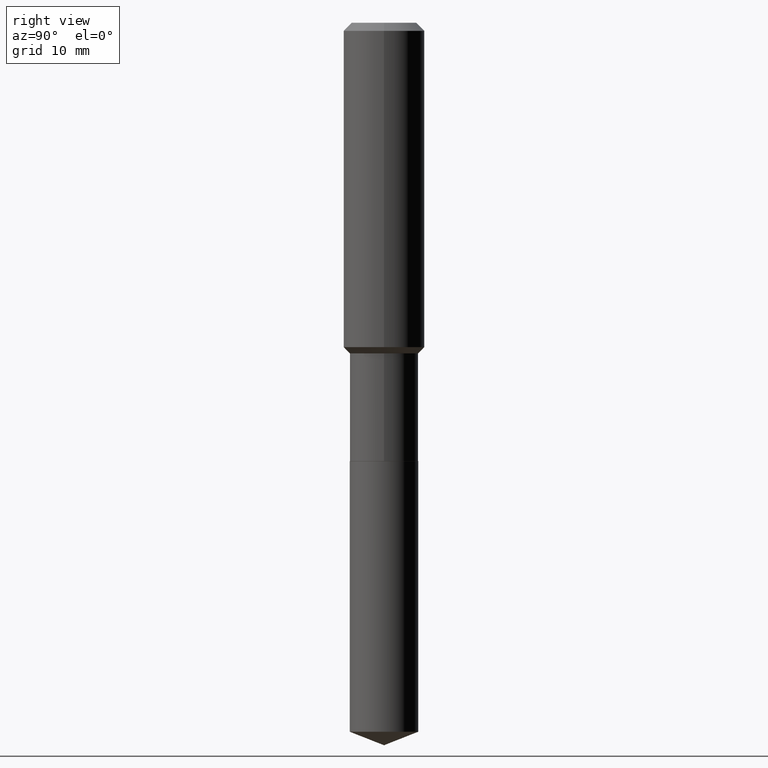
[diagram: clean part render]
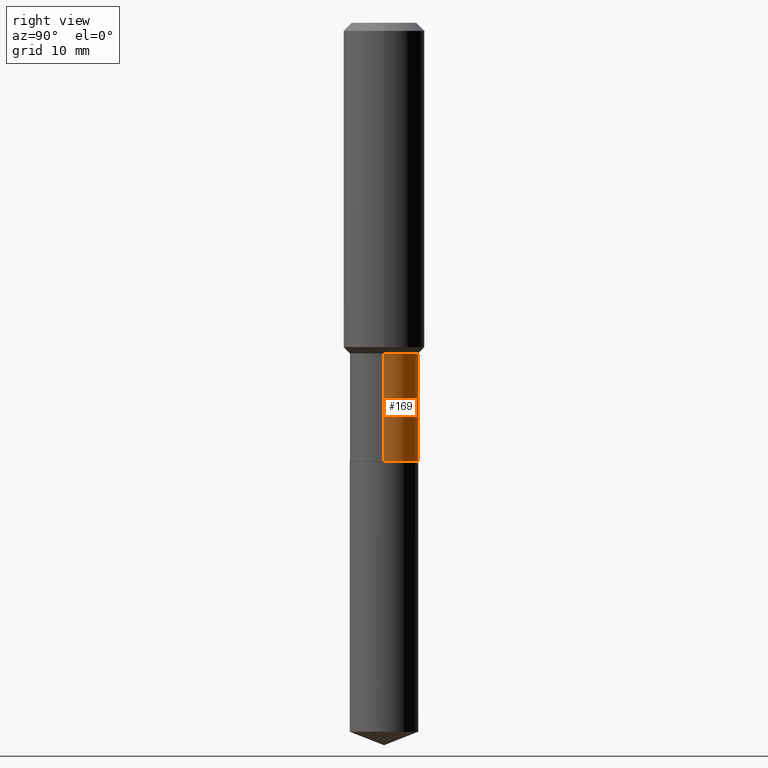
[diagram: same view with one face highlighted and labeled with its STEP entity id]
A machine part, right view. The second image highlights one B-rep face of the part: STEP entity #169.
In plain terms, the highlighted cylindrical surface (edge-blend (fillet) strip) has radius 4.2164 mm, axis along (-0, 0, 1).
Its self-contained STEP definition (entity closure, byte-faithful):
#17 = CARTESIAN_POINT ( 'NONE',  ( -0.1659999999999999531, -5.330540588978220743E-15, -1.603699999999999903 ) ) ;
#20 = ORIENTED_EDGE ( 'NONE', *, *, #148, .F. ) ;
#44 = AXIS2_PLACEMENT_3D ( 'NONE', #453, #216, #244 ) ;
#74 = DIRECTION ( 'NONE',  ( 1.000000000000000000, -6.982962677686269077E-15, 0.000000000000000000 ) ) ;
#98 = CARTESIAN_POINT ( 'NONE',  ( 0.000000000000000000, 0.000000000000000000, 0.000000000000000000 ) ) ;
#106 = EDGE_LOOP ( 'NONE', ( #462, #266, #361, #20 ) ) ;
#130 = LINE ( 'NONE', #217, #258 ) ;
#148 = EDGE_CURVE ( 'NONE', #190, #170, #130, .T. ) ;
#169 = ADVANCED_FACE ( 'NONE', ( #300 ), #333, .T. ) ;
#170 = VERTEX_POINT ( 'NONE', #327 ) ;
#184 = VERTEX_POINT ( 'NONE', #17 ) ;
#186 = DIRECTION ( 'NONE',  ( -2.445468806185136597E-29, 3.491481338843145583E-15, 1.000000000000000000 ) ) ;
#190 = VERTEX_POINT ( 'NONE', #290 ) ;
#202 = VERTEX_POINT ( 'NONE', #322 ) ;
#206 = AXIS2_PLACEMENT_3D ( 'NONE', #312, #414, #74 ) ;
#216 = DIRECTION ( 'NONE',  ( -2.445468806185136597E-29, 3.491481338843145583E-15, 1.000000000000000000 ) ) ;
#217 = CARTESIAN_POINT ( 'NONE',  ( 0.1659999999999999531, -1.159171804495919785E-15, 8.094453447821250782E-30 ) ) ;
#231 = EDGE_CURVE ( 'NONE', #202, #184, #246, .T. ) ;
#244 = DIRECTION ( 'NONE',  ( 1.000000000000000000, -6.982962677686264344E-15, 0.000000000000000000 ) ) ;
#246 = LINE ( 'NONE', #330, #482 ) ;
#258 = VECTOR ( 'NONE', #433, 39.37007874015748143 ) ;
#266 = ORIENTED_EDGE ( 'NONE', *, *, #231, .T. ) ;
#283 = DIRECTION ( 'NONE',  ( -2.445468806185136877E-29, 3.491481338843145188E-15, 1.000000000000000000 ) ) ;
#290 = CARTESIAN_POINT ( 'NONE',  ( 0.1659999999999999809, -8.579966242073141795E-15, -2.125399999999999956 ) ) ;
#300 = FACE_OUTER_BOUND ( 'NONE', #106, .T. ) ;
#305 = AXIS2_PLACEMENT_3D ( 'NONE', #98, #186, #467 ) ;
#312 = CARTESIAN_POINT ( 'NONE',  ( 5.197599400665889285E-29, -7.420794437577220826E-15, -2.125399999999999956 ) ) ;
#322 = CARTESIAN_POINT ( 'NONE',  ( -0.1659999999999999809, -5.330540588978220743E-15, -2.125399999999999956 ) ) ;
#323 = EDGE_CURVE ( 'NONE', #190, #202, #391, .T. ) ;
#327 = CARTESIAN_POINT ( 'NONE',  ( 0.1659999999999999531, -6.758460427598671607E-15, -1.603699999999999903 ) ) ;
#330 = CARTESIAN_POINT ( 'NONE',  ( -0.1659999999999999531, 1.179500941361765976E-15, -8.165432249823140313E-30 ) ) ;
#333 = CYLINDRICAL_SURFACE ( 'NONE', #305, 0.1659999999999999531 ) ;
#347 = CIRCLE ( 'NONE', #44, 0.1659999999999999531 ) ;
#361 = ORIENTED_EDGE ( 'NONE', *, *, #416, .F. ) ;
#391 = CIRCLE ( 'NONE', #206, 0.1659999999999999809 ) ;
#414 = DIRECTION ( 'NONE',  ( -2.445468806185136597E-29, 3.491481338843145583E-15, 1.000000000000000000 ) ) ;
#416 = EDGE_CURVE ( 'NONE', #170, #184, #347, .T. ) ;
#433 = DIRECTION ( 'NONE',  ( -2.445468806185136877E-29, 3.491481338843145188E-15, 1.000000000000000000 ) ) ;
#453 = CARTESIAN_POINT ( 'NONE',  ( 3.921798324479103604E-29, -5.599288623102752216E-15, -1.603699999999999903 ) ) ;
#462 = ORIENTED_EDGE ( 'NONE', *, *, #323, .T. ) ;
#467 = DIRECTION ( 'NONE',  ( 1.000000000000000000, -6.982962677686265922E-15, 4.876176775795935793E-29 ) ) ;
#482 = VECTOR ( 'NONE', #283, 39.37007874015748143 ) ;